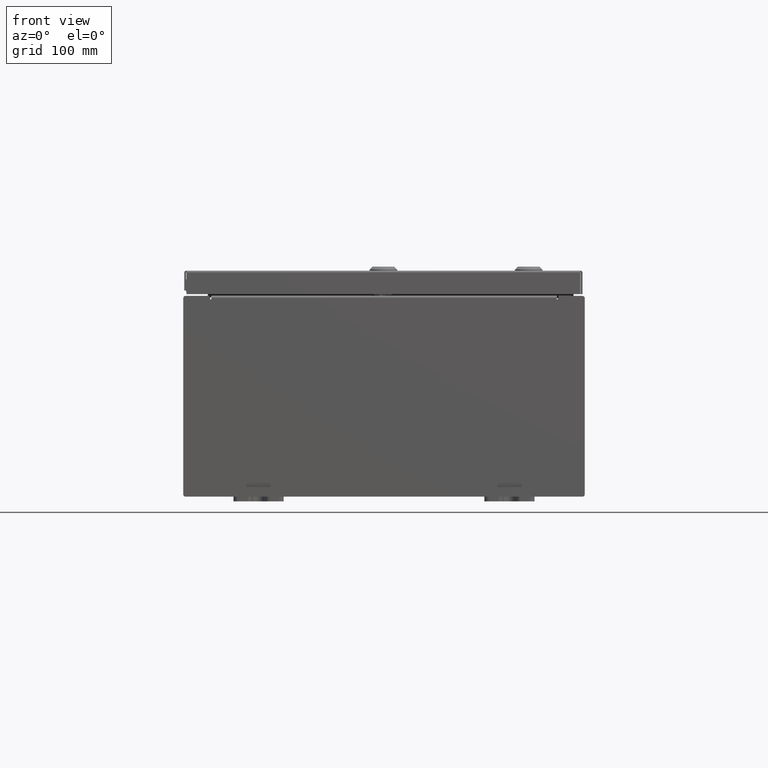
[diagram: clean part render]
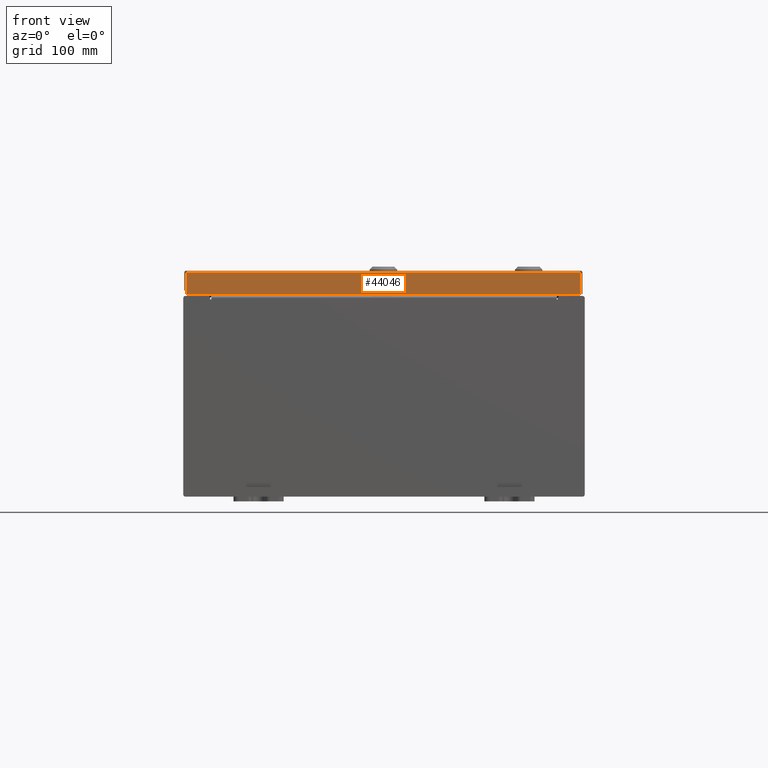
[diagram: same view with one face highlighted and labeled with its STEP entity id]
A machine part, front view. The second image highlights one B-rep face of the part: STEP entity #44046.
In plain terms, the highlighted planar face has unit normal (-0, 1, -0).
Its self-contained STEP definition (entity closure, byte-faithful):
#3744 = DIRECTION ( 'NONE',  ( -0.0000000000000000000, -2.532419924601866100E-015, -1.000000000000000000 ) ) ;
#8872 = EDGE_CURVE ( 'NONE', #26286, #13420, #24400, .T. ) ;
#9496 = CARTESIAN_POINT ( 'NONE',  ( -7.848657864376269400, -9.937500000000001800, 2.542673665674263500E-014 ) ) ;
#12243 = VECTOR ( 'NONE', #23955, 39.37007874015748100 ) ;
#13019 = VECTOR ( 'NONE', #51012, 39.37007874015748100 ) ;
#13420 = VERTEX_POINT ( 'NONE', #26655 ) ;
#13558 = FACE_OUTER_BOUND ( 'NONE', #26043, .T. ) ;
#13759 = LINE ( 'NONE', #52725, #12243 ) ;
#14351 = DIRECTION ( 'NONE',  ( 0.0000000000000000000, -2.532419924601866100E-015, -1.000000000000000000 ) ) ;
#14949 = EDGE_CURVE ( 'NONE', #39030, #43379, #13759, .T. ) ;
#17914 = ORIENTED_EDGE ( 'NONE', *, *, #14949, .F. ) ;
#21832 = CARTESIAN_POINT ( 'NONE',  ( 7.937500000000000000, -9.937500000000001800, -0.08770000000000008300 ) ) ;
#23405 = DIRECTION ( 'NONE',  ( -3.050538836596729700E-031, 1.000000000000000000, -2.532419924601866100E-015 ) ) ;
#23907 = VECTOR ( 'NONE', #14351, 39.37007874015748100 ) ;
#23955 = DIRECTION ( 'NONE',  ( -1.000000000000000000, 4.379057701015054300E-047, 1.204594390907076900E-016 ) ) ;
#24307 = CARTESIAN_POINT ( 'NONE',  ( -7.848657864376269400, -9.937500000000003600, -0.9376999999999977600 ) ) ;
#24400 = LINE ( 'NONE', #21832, #13019 ) ;
#24662 = EDGE_CURVE ( 'NONE', #26286, #43379, #62808, .T. ) ;
#26043 = EDGE_LOOP ( 'NONE', ( #58330, #27925, #17914, #34106 ) ) ;
#26286 = VERTEX_POINT ( 'NONE', #44680 ) ;
#26655 = CARTESIAN_POINT ( 'NONE',  ( 7.848657864376269400, -9.937500000000001800, -0.08770000000000008300 ) ) ;
#27454 = CARTESIAN_POINT ( 'NONE',  ( 7.848657864376269400, -9.937500000000003600, -0.9376999999999997600 ) ) ;
#27925 = ORIENTED_EDGE ( 'NONE', *, *, #24662, .T. ) ;
#32936 = CARTESIAN_POINT ( 'NONE',  ( 7.848657864376269400, -9.937500000000001800, -0.07469999999999980800 ) ) ;
#33435 = PLANE ( 'NONE',  #51289 ) ;
#34106 = ORIENTED_EDGE ( 'NONE', *, *, #49885, .F. ) ;
#38339 = DIRECTION ( 'NONE',  ( 0.0000000000000000000, 2.532419924601866100E-015, 1.000000000000000000 ) ) ;
#39030 = VERTEX_POINT ( 'NONE', #27454 ) ;
#43379 = VERTEX_POINT ( 'NONE', #24307 ) ;
#44046 = ADVANCED_FACE ( 'NONE', ( #13558 ), #33435, .F. ) ;
#44680 = CARTESIAN_POINT ( 'NONE',  ( -7.848657864376269400, -9.937500000000001800, -0.08770000000000008300 ) ) ;
#49146 = LINE ( 'NONE', #32936, #62123 ) ;
#49885 = EDGE_CURVE ( 'NONE', #13420, #39030, #49146, .T. ) ;
#51012 = DIRECTION ( 'NONE',  ( 1.000000000000000000, 3.050538836596730100E-031, -7.637704229682086500E-046 ) ) ;
#51289 = AXIS2_PLACEMENT_3D ( 'NONE', #57724, #23405, #38339 ) ;
#52725 = CARTESIAN_POINT ( 'NONE',  ( 7.937500000000000000, -9.937500000000003600, -0.9376999999999997600 ) ) ;
#57724 = CARTESIAN_POINT ( 'NONE',  ( 3.031472968868000600E-030, -9.937500000000001800, 2.542673665674263500E-014 ) ) ;
#58330 = ORIENTED_EDGE ( 'NONE', *, *, #8872, .F. ) ;
#62123 = VECTOR ( 'NONE', #3744, 39.37007874015748100 ) ;
#62808 = LINE ( 'NONE', #9496, #23907 ) ;